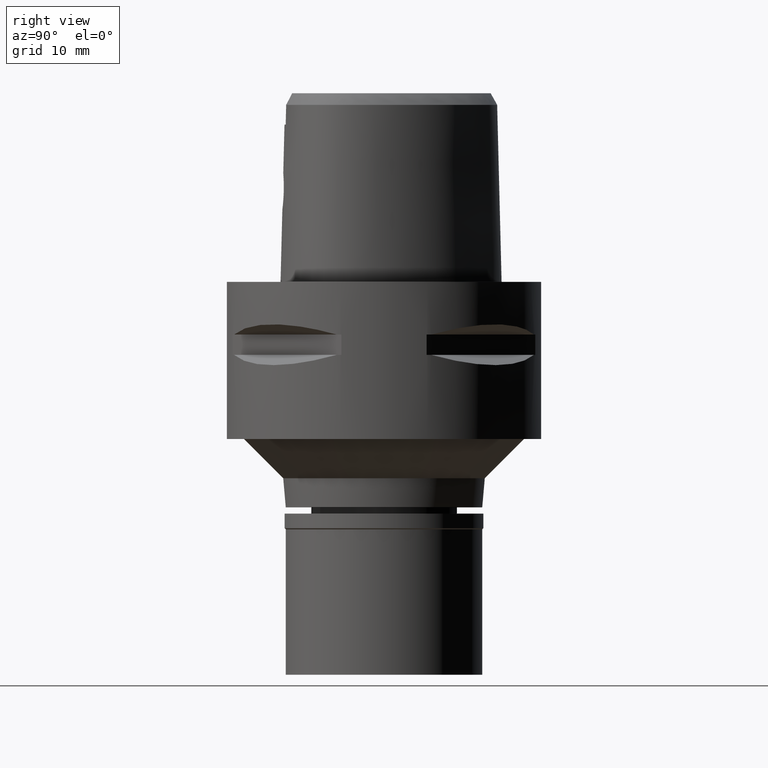
[diagram: clean part render]
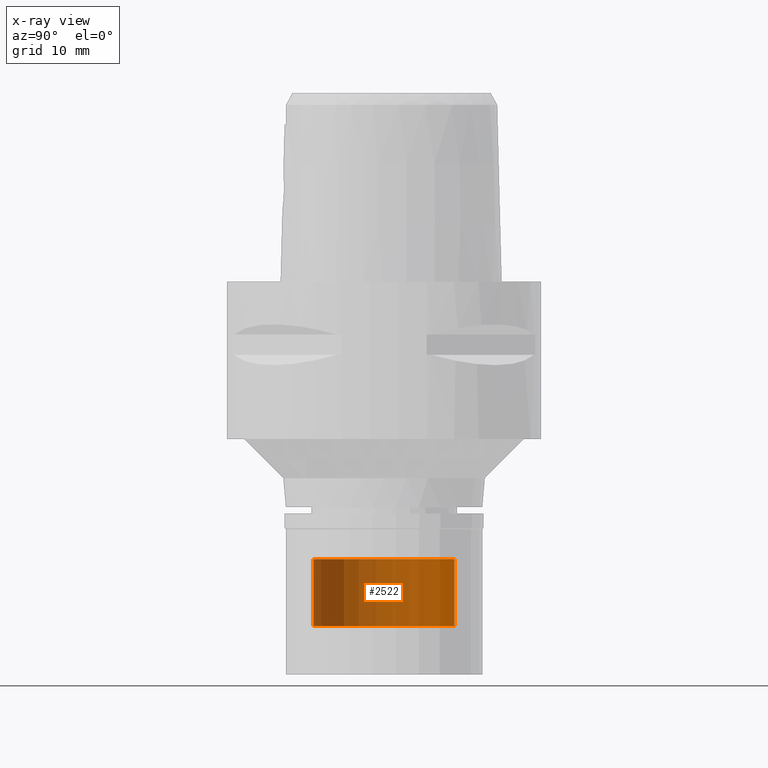
[diagram: x-ray — body ghosted, one internal face saturated and labeled with its STEP entity id]
A machine part, right view, then the same camera in x-ray: the body is ghosted and one INTERNAL B-rep face — a face not visible from any outside direction — is saturated and labeled: STEP entity #2522.
In plain terms, the highlighted cylindrical surface (partial cylindrical patch) has radius 9 mm, axis along (0, 0, -1).
Its self-contained STEP definition (entity closure, byte-faithful):
#97 = AXIS2_PLACEMENT_3D ( 'NONE', #342, #721, #3235 ) ;
#202 = FACE_OUTER_BOUND ( 'NONE', #1089, .T. ) ;
#254 = CARTESIAN_POINT ( 'NONE',  ( 0.0000000000000000000, 9.000000000000000000, -35.29999999999999716 ) ) ;
#342 = CARTESIAN_POINT ( 'NONE',  ( 0.0000000000000000000, 1.251466564048999886E-14, -35.29999999999999716 ) ) ;
#369 = VERTEX_POINT ( 'NONE', #3084 ) ;
#488 = EDGE_CURVE ( 'NONE', #2342, #369, #1828, .T. ) ;
#523 = LINE ( 'NONE', #553, #777 ) ;
#553 = CARTESIAN_POINT ( 'NONE',  ( 0.0000000000000000000, -9.000000000000000000, -35.29999999999999716 ) ) ;
#582 = CARTESIAN_POINT ( 'NONE',  ( 0.0000000000000000000, 9.000000000000000000, -43.79999999999999716 ) ) ;
#721 = DIRECTION ( 'NONE',  ( 0.0000000000000000000, 0.0000000000000000000, -1.000000000000000000 ) ) ;
#777 = VECTOR ( 'NONE', #3733, 1000.000000000000000 ) ;
#1065 = DIRECTION ( 'NONE',  ( 0.0000000000000000000, 0.0000000000000000000, -1.000000000000000000 ) ) ;
#1082 = DIRECTION ( 'NONE',  ( 0.0000000000000000000, 0.0000000000000000000, -1.000000000000000000 ) ) ;
#1089 = EDGE_LOOP ( 'NONE', ( #3451, #2064, #1771, #4006 ) ) ;
#1184 = VERTEX_POINT ( 'NONE', #1352 ) ;
#1253 = VERTEX_POINT ( 'NONE', #254 ) ;
#1262 = DIRECTION ( 'NONE',  ( 0.0000000000000000000, 1.000000000000000000, 0.0000000000000000000 ) ) ;
#1352 = CARTESIAN_POINT ( 'NONE',  ( 0.0000000000000000000, -9.000000000000000000, -35.29999999999999716 ) ) ;
#1457 = CARTESIAN_POINT ( 'NONE',  ( 0.0000000000000000000, 9.000000000000000000, -35.29999999999999716 ) ) ;
#1771 = ORIENTED_EDGE ( 'NONE', *, *, #4562, .T. ) ;
#1828 = CIRCLE ( 'NONE', #3406, 9.000000000000000000 ) ;
#2064 = ORIENTED_EDGE ( 'NONE', *, *, #3306, .F. ) ;
#2115 = LINE ( 'NONE', #1457, #3955 ) ;
#2182 = CYLINDRICAL_SURFACE ( 'NONE', #2443, 9.000000000000000000 ) ;
#2342 = VERTEX_POINT ( 'NONE', #582 ) ;
#2443 = AXIS2_PLACEMENT_3D ( 'NONE', #3950, #1082, #3992 ) ;
#2522 = ADVANCED_FACE ( 'NONE', ( #202 ), #2182, .T. ) ;
#3084 = CARTESIAN_POINT ( 'NONE',  ( 0.0000000000000000000, -9.000000000000000000, -43.79999999999999716 ) ) ;
#3131 = CIRCLE ( 'NONE', #97, 9.000000000000000000 ) ;
#3235 = DIRECTION ( 'NONE',  ( 0.0000000000000000000, -1.000000000000000000, 0.0000000000000000000 ) ) ;
#3306 = EDGE_CURVE ( 'NONE', #1184, #369, #523, .T. ) ;
#3406 = AXIS2_PLACEMENT_3D ( 'NONE', #4127, #4523, #1262 ) ;
#3451 = ORIENTED_EDGE ( 'NONE', *, *, #488, .T. ) ;
#3733 = DIRECTION ( 'NONE',  ( 0.0000000000000000000, 0.0000000000000000000, -1.000000000000000000 ) ) ;
#3743 = EDGE_CURVE ( 'NONE', #1253, #2342, #2115, .T. ) ;
#3950 = CARTESIAN_POINT ( 'NONE',  ( 0.0000000000000000000, 1.251466564048999886E-14, 2.189999999999999947 ) ) ;
#3955 = VECTOR ( 'NONE', #1065, 1000.000000000000000 ) ;
#3992 = DIRECTION ( 'NONE',  ( 0.0000000000000000000, -1.000000000000000000, 0.0000000000000000000 ) ) ;
#4006 = ORIENTED_EDGE ( 'NONE', *, *, #3743, .T. ) ;
#4127 = CARTESIAN_POINT ( 'NONE',  ( 0.0000000000000000000, 1.251466564048999886E-14, -43.79999999999999716 ) ) ;
#4523 = DIRECTION ( 'NONE',  ( 0.0000000000000000000, 0.0000000000000000000, 1.000000000000000000 ) ) ;
#4562 = EDGE_CURVE ( 'NONE', #1184, #1253, #3131, .T. ) ;